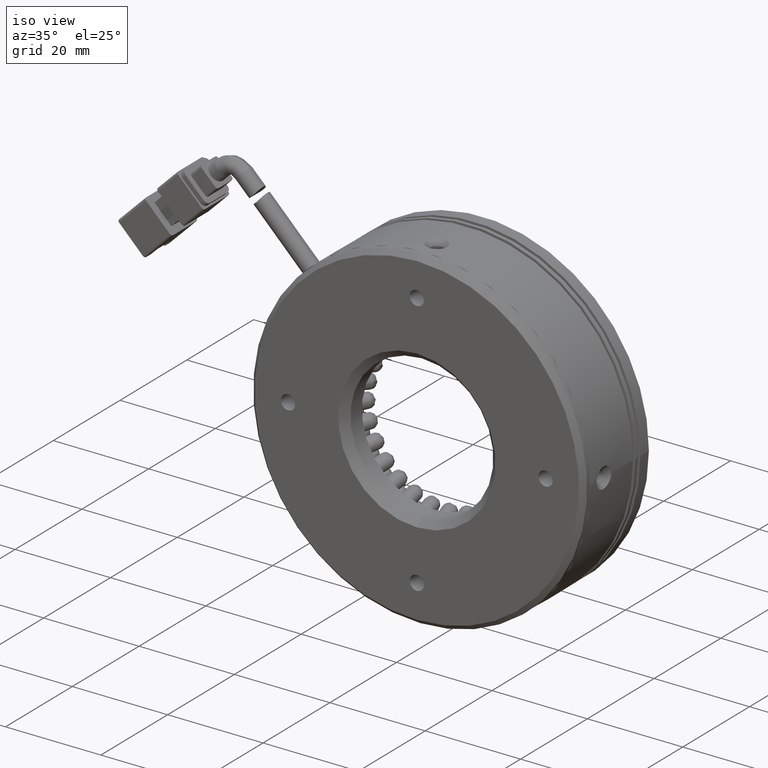
[diagram: clean part render]
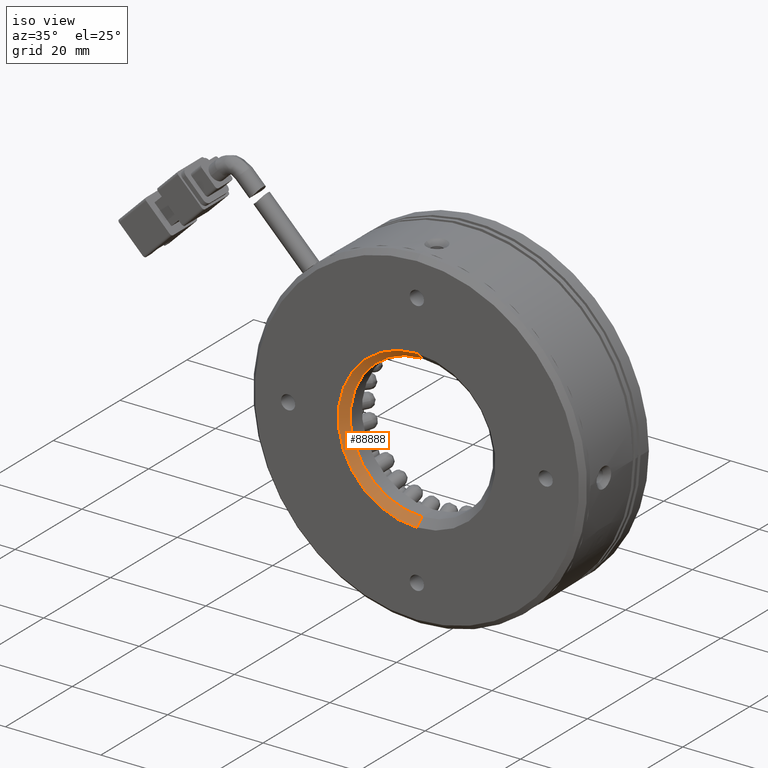
[diagram: same view with one face highlighted and labeled with its STEP entity id]
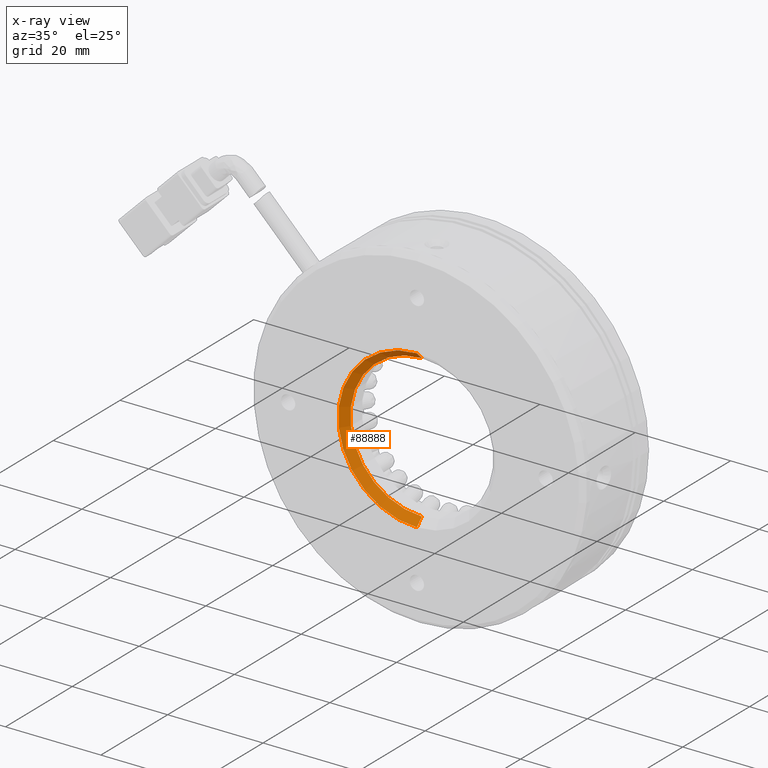
[diagram: x-ray of the same camera — body ghosted, the highlighted face saturated]
A machine part, iso view. The second image highlights one B-rep face of the part: STEP entity #88888.
The next image is the same camera in x-ray: the body ghosted, the highlighted face saturated — about 0% of this face is hidden behind the body in this view.
In plain terms, the highlighted conical surface has half-angle 45 deg.
Its self-contained STEP definition (entity closure, byte-faithful):
#1146 = EDGE_CURVE ( 'NONE', #4480, #90202, #72741, .T. ) ;
#4480 = VERTEX_POINT ( 'NONE', #77716 ) ;
#8903 = LINE ( 'NONE', #12245, #64689 ) ;
#9760 = CARTESIAN_POINT ( 'NONE',  ( -3.499229287090538600, 31.07623868994505800, -16.50000000000002800 ) ) ;
#12245 = CARTESIAN_POINT ( 'NONE',  ( -3.499229287090536400, 31.07623868994505800, 16.50000000000002800 ) ) ;
#13211 = EDGE_CURVE ( 'NONE', #34787, #4480, #28985, .T. ) ;
#13840 = ORIENTED_EDGE ( 'NONE', *, *, #18861, .F. ) ;
#18861 = EDGE_CURVE ( 'NONE', #90202, #36358, #21308, .T. ) ;
#19380 = CARTESIAN_POINT ( 'NONE',  ( -3.499229287090536400, 31.07623868994505800, 16.50000000000002800 ) ) ;
#19689 = ORIENTED_EDGE ( 'NONE', *, *, #13211, .F. ) ;
#20212 = CARTESIAN_POINT ( 'NONE',  ( -3.499229287090538600, 31.07623868994505800, -16.50000000000002800 ) ) ;
#21066 = DIRECTION ( 'NONE',  ( -0.0000000000000000000, -1.000000000000000000, -0.0000000000000000000 ) ) ;
#21308 = CIRCLE ( 'NONE', #69875, 16.50000000000002800 ) ;
#22819 = AXIS2_PLACEMENT_3D ( 'NONE', #62931, #21066, #69988 ) ;
#26854 = CARTESIAN_POINT ( 'NONE',  ( -3.499229287090538600, 32.57623868994507900, 15.00000000000001200 ) ) ;
#28985 = CIRCLE ( 'NONE', #22819, 15.00000000000001200 ) ;
#30305 = EDGE_CURVE ( 'NONE', #34787, #36358, #8903, .T. ) ;
#33984 = CARTESIAN_POINT ( 'NONE',  ( -3.499229287090538600, 31.07623868994505800, 0.0000000000000000000 ) ) ;
#34787 = VERTEX_POINT ( 'NONE', #26854 ) ;
#34896 = EDGE_LOOP ( 'NONE', ( #19689, #54429, #13840, #74797 ) ) ;
#36358 = VERTEX_POINT ( 'NONE', #19380 ) ;
#38788 = CARTESIAN_POINT ( 'NONE',  ( -3.499229287090538600, 31.07623868994505800, 0.0000000000000000000 ) ) ;
#40997 = DIRECTION ( 'NONE',  ( 0.0000000000000000000, 0.0000000000000000000, -1.000000000000000000 ) ) ;
#45748 = AXIS2_PLACEMENT_3D ( 'NONE', #38788, #52826, #80969 ) ;
#51672 = DIRECTION ( 'NONE',  ( 0.0000000000000000000, -0.7071067811865480200, -0.7071067811865470200 ) ) ;
#52826 = DIRECTION ( 'NONE',  ( 0.0000000000000000000, -1.000000000000000000, 0.0000000000000000000 ) ) ;
#54109 = VECTOR ( 'NONE', #51672, 1000.000000000000000 ) ;
#54429 = ORIENTED_EDGE ( 'NONE', *, *, #30305, .T. ) ;
#62931 = CARTESIAN_POINT ( 'NONE',  ( -3.499229287090538600, 32.57623868994507900, 0.0000000000000000000 ) ) ;
#64689 = VECTOR ( 'NONE', #68229, 1000.000000000000000 ) ;
#68229 = DIRECTION ( 'NONE',  ( 8.659560562354926700E-017, -0.7071067811865480200, 0.7071067811865470200 ) ) ;
#69875 = AXIS2_PLACEMENT_3D ( 'NONE', #33984, #82882, #40997 ) ;
#69988 = DIRECTION ( 'NONE',  ( 0.0000000000000000000, 0.0000000000000000000, -1.000000000000000000 ) ) ;
#72741 = LINE ( 'NONE', #9760, #54109 ) ;
#73250 = CONICAL_SURFACE ( 'NONE', #45748, 16.50000000000002800, 0.7853981633974476100 ) ;
#74797 = ORIENTED_EDGE ( 'NONE', *, *, #1146, .F. ) ;
#77716 = CARTESIAN_POINT ( 'NONE',  ( -3.499229287090536800, 32.57623868994507900, -15.00000000000001200 ) ) ;
#80969 = DIRECTION ( 'NONE',  ( 0.0000000000000000000, 0.0000000000000000000, -1.000000000000000000 ) ) ;
#82024 = FACE_OUTER_BOUND ( 'NONE', #34896, .T. ) ;
#82882 = DIRECTION ( 'NONE',  ( -0.0000000000000000000, 1.000000000000000000, -0.0000000000000000000 ) ) ;
#88888 = ADVANCED_FACE ( 'NONE', ( #82024 ), #73250, .F. ) ;
#90202 = VERTEX_POINT ( 'NONE', #20212 ) ;